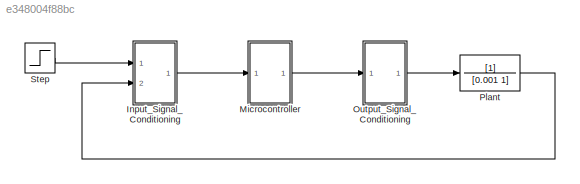
MODEL slx_e348004f88bc
KIND model
CONFIG AbsTol = auto
CONFIG FixedStep = auto
CONFIG MaxStep = auto
CONFIG MinStep = auto
CONFIG RelTol = 1e-3
CONFIG SampleTimeConstraint = Unconstrained
CONFIG Solver = ode45
CONFIG SolverMode = Auto
CONFIG SolverName = ode45
CONFIG StartTime = 0.0
CONFIG StopTime = 2
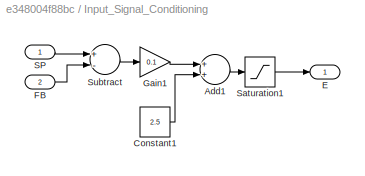
BLOCK [SubSystem] Input_Signal_Conditioning
  Ports = [2, 1]
  RequestExecContextInheritance = off
BLOCK [Sum] Input_Signal_Conditioning/Add1
  InputSameDT = off
  OutDataTypeStr = Inherit: Inherit via internal rule
  Ports = [2, 1]
  SaturateOnIntegerOverflow = off
BLOCK [Constant] Input_Signal_Conditioning/Constant1
  Value = 2.5
BLOCK [Outport] Input_Signal_Conditioning/E
  IconDisplay = Port number
BLOCK [Inport] Input_Signal_Conditioning/FB
  IconDisplay = Port number
  Port = 2
BLOCK [Gain] Input_Signal_Conditioning/Gain1
  Gain = 0.1
  OutDataTypeStr = Inherit: Inherit via internal rule
  ParamDataTypeStr = Inherit: Inherit via internal rule
  SaturateOnIntegerOverflow = off
BLOCK [Inport] Input_Signal_Conditioning/SP
  IconDisplay = Port number
BLOCK [Saturate] Input_Signal_Conditioning/Saturation1
  InputPortMap = u0
  LowerLimit = 0.05
  Ports = [1, 1]
  UpperLimit = 4.95
BLOCK [Sum] Input_Signal_Conditioning/Subtract
  InputSameDT = off
  Inputs = +-
  OutDataTypeStr = Inherit: Inherit via internal rule
  Ports = [2, 1]
  SaturateOnIntegerOverflow = off
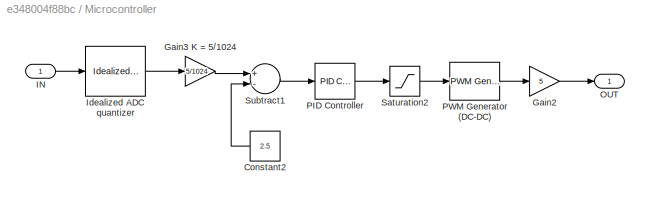
BLOCK [SubSystem] Microcontroller
  Ports = [1, 1]
  RequestExecContextInheritance = off
BLOCK [Constant] Microcontroller/Constant2
  Value = 2.5
BLOCK [Gain] Microcontroller/Gain2
  Gain = 5
  OutDataTypeStr = Inherit: Inherit via internal rule
  ParamDataTypeStr = Inherit: Inherit via internal rule
  SaturateOnIntegerOverflow = off
BLOCK [Gain] Microcontroller/Gain3 K = 5//1024
  Gain = 5/1024
  OutDataTypeStr = Inherit: Inherit via internal rule
  ParamDataTypeStr = Inherit: Inherit via internal rule
  SaturateOnIntegerOverflow = off
BLOCK [Inport] Microcontroller/IN
  IconDisplay = Port number
BLOCK [Reference] Microcontroller/Idealized ADC quantizer  REF=simulink_extras/Additional
Discrete/Idealized ADC quantizer
  AttributesFormatString = (settings: %<NumberOfConverterBits>-bit converter\nVmin: %<Vmin>, Vmax: %<Vmax>)
  NumberOfConverterBits = 10
  OutputDataType = int16
  OutputNegativeValues = off
  Ports = [1, 1]
  SourceBlock = simulink_extras/Additional\nDiscrete/Idealized ADC quantizer
  SourceType = IdealADC
  Vmax = 5
  Vmin = 0
BLOCK [Outport] Microcontroller/OUT
  IconDisplay = Port number
BLOCK [Reference] Microcontroller/PID Controller  REF=simulink/Continuous/PID Controller
  AntiWindupMode = none
  Controller = PID
  ControllerParametersSource = internal
  D = 0
  DGainOutDataTypeStr = Inherit: Inherit via internal rule
  DOutDataTypeStr = Inherit: Inherit via internal rule
  DOutMax = []
  DOutMin = []
  DParamDataTypeStr = Inherit: Inherit via internal rule
  DParamMax = []
  DParamMin = []
  DProdOutDataTypeStr = Inherit: Inherit via internal rule
  DifferentiatorICPrevScaledInput = 0
  DifferentiatorOutDataTypeStr = Inherit: Inherit via internal rule
  DifferentiatorOutMax = []
  DifferentiatorOutMin = []
  ExternalReset = none
  FilterContinuousStateAttributes = ''
  FilterMethod = Forward Euler
  FilterOutDataTypeStr = Inherit: Inherit via internal rule
  FilterOutMax = []
  FilterOutMin = []
  FilterRTWStateStorageClass = Auto
  FilterStateMustResolveToSignalObject = off
  Form = Parallel
  I = 20
  IGainOutDataTypeStr = Inherit: Inherit via internal rule
  IOutDataTypeStr = Inherit: Inherit via internal rule
  IOutMax = []
  IOutMin = []
  IParamDataTypeStr = Inherit: Inherit via internal rule
  IParamMax = []
  IParamMin = []
  IProdOutDataTypeStr = Inherit: Inherit via internal rule
  IgnoreLimit = off
  InitialConditionForFilter = 0
  InitialConditionForIntegrator = 0
  InitialConditionSource = internal
  IntegratorContinuousStateAttributes = ''
  IntegratorMethod = Forward Euler
  IntegratorOutDataTypeStr = Inherit: Inherit via internal rule
  IntegratorOutMax = []
  IntegratorOutMin = []
  IntegratorRTWStateStorageClass = Auto
  IntegratorStateMustResolveToSignalObject = off
  Kb = 1
  KbOutDataTypeStr = Inherit: Inherit via internal rule
  KbOutMax = []
  KbOutMin = []
  KbParamDataTypeStr = Inherit: Inherit via internal rule
  KbParamMax = []
  KbParamMin = []
  Kt = 1
  KtOutDataTypeStr = Inherit: Inherit via internal rule
  KtOutMax = []
  KtOutMin = []
  KtParamDataTypeStr = Inherit: Inherit via internal rule
  KtParamMax = []
  KtParamMin = []
  LimitOutput = off
  LinearizeAsGain = on
  LockScale = off
  LowerSaturationLimit = -inf
  N = 100
  NGainOutDataTypeStr = Inherit: Inherit via internal rule
  NOutDataTypeStr = Inherit: Inherit via internal rule
  NOutMax = []
  NOutMin = []
  NParamDataTypeStr = Inherit: Inherit via internal rule
  NParamMax = []
  NParamMin = []
  NProdOutDataTypeStr = Inherit: Inherit via internal rule
  P = 0.004
  PGainOutDataTypeStr = Inherit: Inherit via internal rule
  POutDataTypeStr = Inherit: Inherit via internal rule
  POutMax = []
  POutMin = []
  PParamDataTypeStr = Inherit: Inherit via internal rule
  PParamMax = []
  PParamMin = []
  PProdOutDataTypeStr = Inherit: Inherit via internal rule
  Ports = [1, 1]
  RndMeth = Floor
  SampleTime = 0.0002
  SaturateOnIntegerOverflow = off
  SaturationOutDataTypeStr = Inherit: Same as input
  SaturationOutMax = []
  SaturationOutMin = []
  SourceBlock = simulink/Continuous/PID Controller
  SourceType = PID 1dof
  SumAccumDataTypeStr = Inherit: Inherit via internal rule
  SumDAccumDataTypeStr = Inherit: Inherit via internal rule
  SumDOutDataTypeStr = Inherit: Inherit via internal rule
  SumDOutMax = []
  SumDOutMin = []
  SumI1AccumDataTypeStr = Inherit: Inherit via internal rule
  SumI1OutDataTypeStr = Inherit: Inherit via internal rule
  SumI1OutMax = []
  SumI1OutMin = []
  SumI2AccumDataTypeStr = Inherit: Inherit via internal rule
  SumI2OutDataTypeStr = Inherit: Inherit via internal rule
  SumI2OutMax = []
  SumI2OutMin = []
  SumI3AccumDataTypeStr = Inherit: Inherit via internal rule
  SumI3OutDataTypeStr = Inherit: Inherit via internal rule
  SumI3OutMax = []
  SumI3OutMin = []
  SumOutDataTypeStr = Inherit: Inherit via internal rule
  SumOutMax = []
  SumOutMin = []
  TimeDomain = Discrete-time
  TrackingMode = off
  UpperSaturationLimit = inf
  UseFilter = on
  ZeroCross = on
BLOCK [Reference] Microcontroller/PWM Generator (DC-DC)  REF=powerlib_meascontrol/Pulse & Signal
Generators/PWM Generator
(DC-DC)
  Fsw = 100000
  Ports = [1, 1]
  SourceBlock = powerlib_meascontrol/Pulse & Signal\nGenerators/PWM Generator\n(DC-DC)
  SourceType = PWM Generator (DC-DC)
  Ts = 0
BLOCK [Saturate] Microcontroller/Saturation2
  InputPortMap = u0
  LowerLimit = 0.005
  Ports = [1, 1]
  UpperLimit = 0.995
BLOCK [Sum] Microcontroller/Subtract1
  InputSameDT = off
  Inputs = +-
  OutDataTypeStr = Inherit: Inherit via internal rule
  Ports = [2, 1]
  SaturateOnIntegerOverflow = off
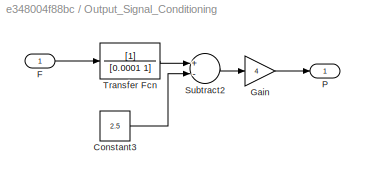
BLOCK [SubSystem] Output_Signal_Conditioning
  Ports = [1, 1]
  RequestExecContextInheritance = off
BLOCK [Constant] Output_Signal_Conditioning/Constant3 
  Value = 2.5
BLOCK [Inport] Output_Signal_Conditioning/F
  IconDisplay = Port number
BLOCK [Gain] Output_Signal_Conditioning/Gain
  Gain = 4
  OutDataTypeStr = Inherit: Inherit via internal rule
  ParamDataTypeStr = Inherit: Inherit via internal rule
  SaturateOnIntegerOverflow = off
BLOCK [Outport] Output_Signal_Conditioning/P
  IconDisplay = Port number
BLOCK [Sum] Output_Signal_Conditioning/Subtract2
  InputSameDT = off
  Inputs = +-
  OutDataTypeStr = Inherit: Inherit via internal rule
  Ports = [2, 1]
  SaturateOnIntegerOverflow = off
BLOCK [TransferFcn] Output_Signal_Conditioning/Transfer Fcn
  Denominator = [0.0001 1]
BLOCK [TransferFcn] Plant
  Denominator = [0.001 1]
BLOCK [Step] Step
  After = 5
  SampleTime = 0
LINE Input_Signal_Conditioning/Add1:1 -> Input_Signal_Conditioning/Saturation1:1
LINE Input_Signal_Conditioning/Constant1:1 -> Input_Signal_Conditioning/Add1:2
LINE Input_Signal_Conditioning/FB:1 -> Input_Signal_Conditioning/Subtract:2
LINE Input_Signal_Conditioning/Gain1:1 -> Input_Signal_Conditioning/Add1:1
LINE Input_Signal_Conditioning/SP:1 -> Input_Signal_Conditioning/Subtract:1
LINE Input_Signal_Conditioning/Saturation1:1 -> Input_Signal_Conditioning/E:1
LINE Input_Signal_Conditioning/Subtract:1 -> Input_Signal_Conditioning/Gain1:1
LINE Input_Signal_Conditioning:1 -> Microcontroller:1
LINE Microcontroller/Constant2:1 -> Microcontroller/Subtract1:2
LINE Microcontroller/Gain2:1 -> Microcontroller/OUT:1
LINE Microcontroller/Gain3 K = 5//1024:1 -> Microcontroller/Subtract1:1
LINE Microcontroller/IN:1 -> Microcontroller/Idealized ADC quantizer:1
LINE Microcontroller/Idealized ADC quantizer:1 -> Microcontroller/Gain3 K = 5//1024:1
LINE Microcontroller/PID Controller:1 -> Microcontroller/Saturation2:1
LINE Microcontroller/PWM Generator (DC-DC):1 -> Microcontroller/Gain2:1
LINE Microcontroller/Saturation2:1 -> Microcontroller/PWM Generator (DC-DC):1
LINE Microcontroller/Subtract1:1 -> Microcontroller/PID Controller:1
LINE Microcontroller:1 -> Output_Signal_Conditioning:1
LINE Output_Signal_Conditioning/Constant3 :1 -> Output_Signal_Conditioning/Subtract2:2
LINE Output_Signal_Conditioning/F:1 -> Output_Signal_Conditioning/Transfer Fcn:1
LINE Output_Signal_Conditioning/Gain:1 -> Output_Signal_Conditioning/P:1
LINE Output_Signal_Conditioning/Subtract2:1 -> Output_Signal_Conditioning/Gain:1
LINE Output_Signal_Conditioning/Transfer Fcn:1 -> Output_Signal_Conditioning/Subtract2:1
LINE Output_Signal_Conditioning:1 -> Plant:1
LINE Plant:1 -> Input_Signal_Conditioning:2
LINE Step:1 -> Input_Signal_Conditioning:1
